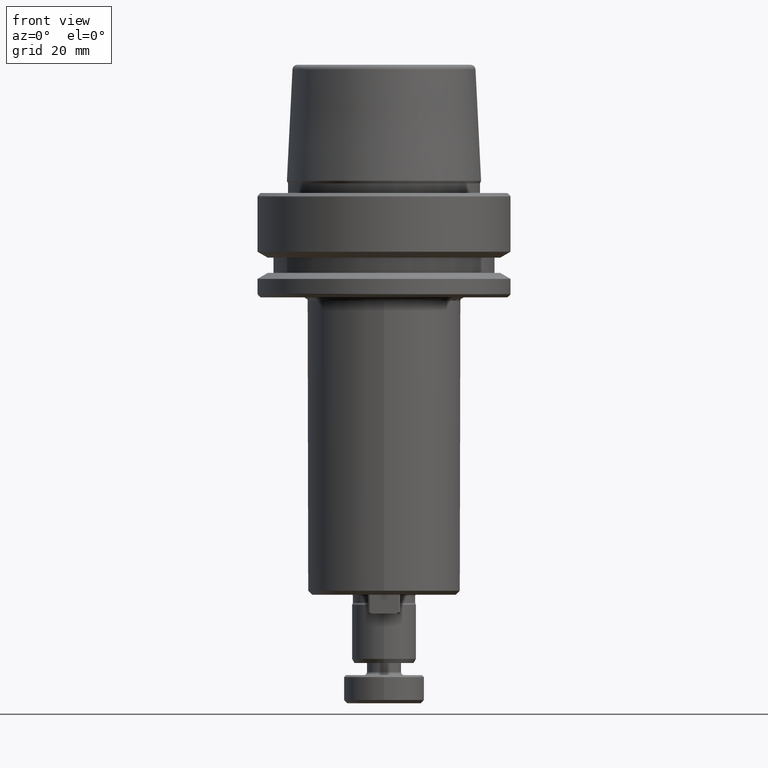
[diagram: clean part render]
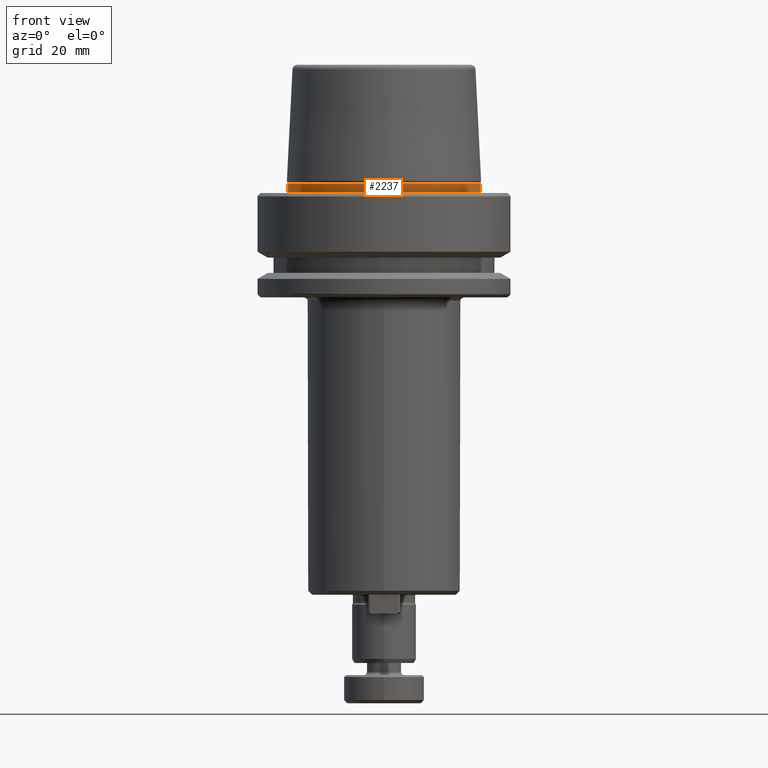
[diagram: same view with one face highlighted and labeled with its STEP entity id]
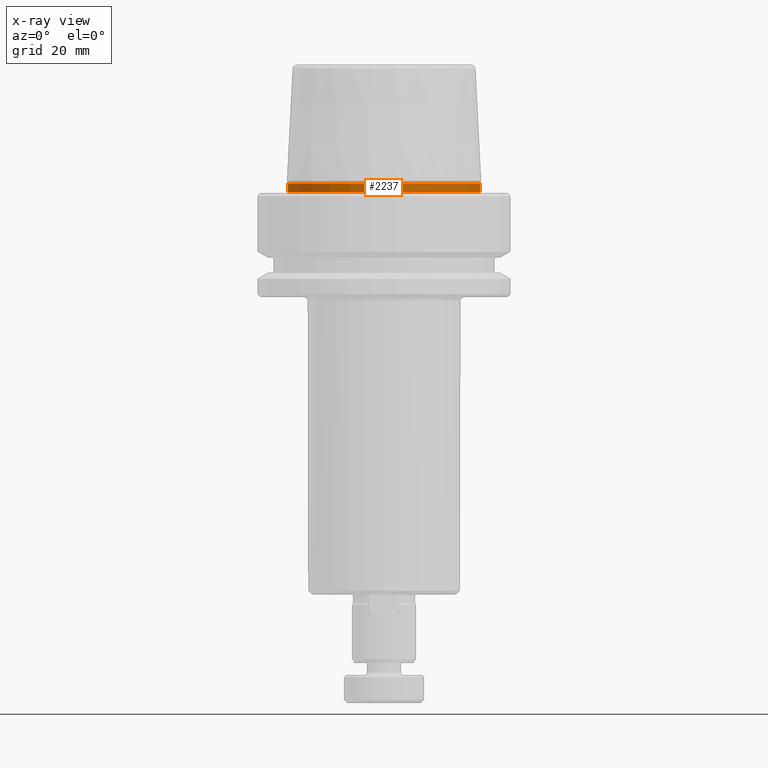
[diagram: x-ray of the same camera — body ghosted, the highlighted face saturated]
A machine part, front view. The second image highlights one B-rep face of the part: STEP entity #2237.
The next image is the same camera in x-ray: the body ghosted, the highlighted face saturated — about 0% of this face is hidden behind the body in this view.
In plain terms, the highlighted cylindrical surface (partial cylindrical patch) has radius 23.89 mm, axis along (-0, -0, 1).
Its self-contained STEP definition (entity closure, byte-faithful):
#35 = CARTESIAN_POINT ( 'NONE',  ( 0.0000000000000000000, 0.0000000000000000000, 0.1312552021302954000 ) ) ;
#140 = EDGE_LOOP ( 'NONE', ( #2738, #1603, #1033, #1581 ) ) ;
#173 = CIRCLE ( 'NONE', #370, 23.89000000000000400 ) ;
#303 = DIRECTION ( 'NONE',  ( -0.0000000000000000000, -0.0000000000000000000, 1.000000000000000000 ) ) ;
#369 = LINE ( 'NONE', #2086, #2020 ) ;
#370 = AXIS2_PLACEMENT_3D ( 'NONE', #35, #1324, #635 ) ;
#395 = CARTESIAN_POINT ( 'NONE',  ( 23.89000000000000100, 0.0000000000000000000, 2.398838415132276100 ) ) ;
#462 = CIRCLE ( 'NONE', #1357, 23.89000000000000100 ) ;
#588 = VERTEX_POINT ( 'NONE', #990 ) ;
#635 = DIRECTION ( 'NONE',  ( 1.000000000000000000, 0.0000000000000000000, 0.0000000000000000000 ) ) ;
#990 = CARTESIAN_POINT ( 'NONE',  ( -23.89000000000000100, 2.942846235451747500E-015, 2.398838415132276100 ) ) ;
#1033 = ORIENTED_EDGE ( 'NONE', *, *, #2261, .T. ) ;
#1188 = EDGE_CURVE ( 'NONE', #1342, #588, #369, .T. ) ;
#1281 = CARTESIAN_POINT ( 'NONE',  ( 0.0000000000000000000, 0.0000000000000000000, 2.398838415132276100 ) ) ;
#1302 = CYLINDRICAL_SURFACE ( 'NONE', #2178, 23.89000000000000100 ) ;
#1324 = DIRECTION ( 'NONE',  ( -0.0000000000000000000, -0.0000000000000000000, 1.000000000000000000 ) ) ;
#1332 = EDGE_CURVE ( 'NONE', #1342, #2438, #173, .T. ) ;
#1342 = VERTEX_POINT ( 'NONE', #1533 ) ;
#1357 = AXIS2_PLACEMENT_3D ( 'NONE', #1281, #2812, #1498 ) ;
#1367 = FACE_OUTER_BOUND ( 'NONE', #140, .T. ) ;
#1373 = CARTESIAN_POINT ( 'NONE',  ( 0.0000000000000000000, 0.0000000000000000000, 78.96908074195309300 ) ) ;
#1473 = VERTEX_POINT ( 'NONE', #395 ) ;
#1498 = DIRECTION ( 'NONE',  ( 1.000000000000000000, 0.0000000000000000000, 0.0000000000000000000 ) ) ;
#1533 = CARTESIAN_POINT ( 'NONE',  ( -23.89000000000000400, 2.961613815265650600E-015, 0.1312552021302954000 ) ) ;
#1581 = ORIENTED_EDGE ( 'NONE', *, *, #1937, .F. ) ;
#1603 = ORIENTED_EDGE ( 'NONE', *, *, #1332, .T. ) ;
#1807 = DIRECTION ( 'NONE',  ( 1.000000000000000000, 0.0000000000000000000, 0.0000000000000000000 ) ) ;
#1937 = EDGE_CURVE ( 'NONE', #588, #1473, #462, .T. ) ;
#2020 = VECTOR ( 'NONE', #2384, 1000.000000000000000 ) ;
#2086 = CARTESIAN_POINT ( 'NONE',  ( -23.89000000000000100, 2.925681203163027000E-015, 78.96908074195309300 ) ) ;
#2089 = CARTESIAN_POINT ( 'NONE',  ( 23.89000000000000400, 0.0000000000000000000, 0.1312552021302954000 ) ) ;
#2178 = AXIS2_PLACEMENT_3D ( 'NONE', #1373, #303, #1807 ) ;
#2237 = ADVANCED_FACE ( 'NONE', ( #1367 ), #1302, .T. ) ;
#2261 = EDGE_CURVE ( 'NONE', #2438, #1473, #2525, .T. ) ;
#2384 = DIRECTION ( 'NONE',  ( -0.0000000000000000000, -0.0000000000000000000, 1.000000000000000000 ) ) ;
#2387 = VECTOR ( 'NONE', #2469, 1000.000000000000000 ) ;
#2438 = VERTEX_POINT ( 'NONE', #2089 ) ;
#2469 = DIRECTION ( 'NONE',  ( -0.0000000000000000000, -0.0000000000000000000, 1.000000000000000000 ) ) ;
#2525 = LINE ( 'NONE', #2691, #2387 ) ;
#2691 = CARTESIAN_POINT ( 'NONE',  ( 23.89000000000000100, 0.0000000000000000000, 78.96908074195309300 ) ) ;
#2738 = ORIENTED_EDGE ( 'NONE', *, *, #1188, .F. ) ;
#2812 = DIRECTION ( 'NONE',  ( -0.0000000000000000000, -0.0000000000000000000, 1.000000000000000000 ) ) ;